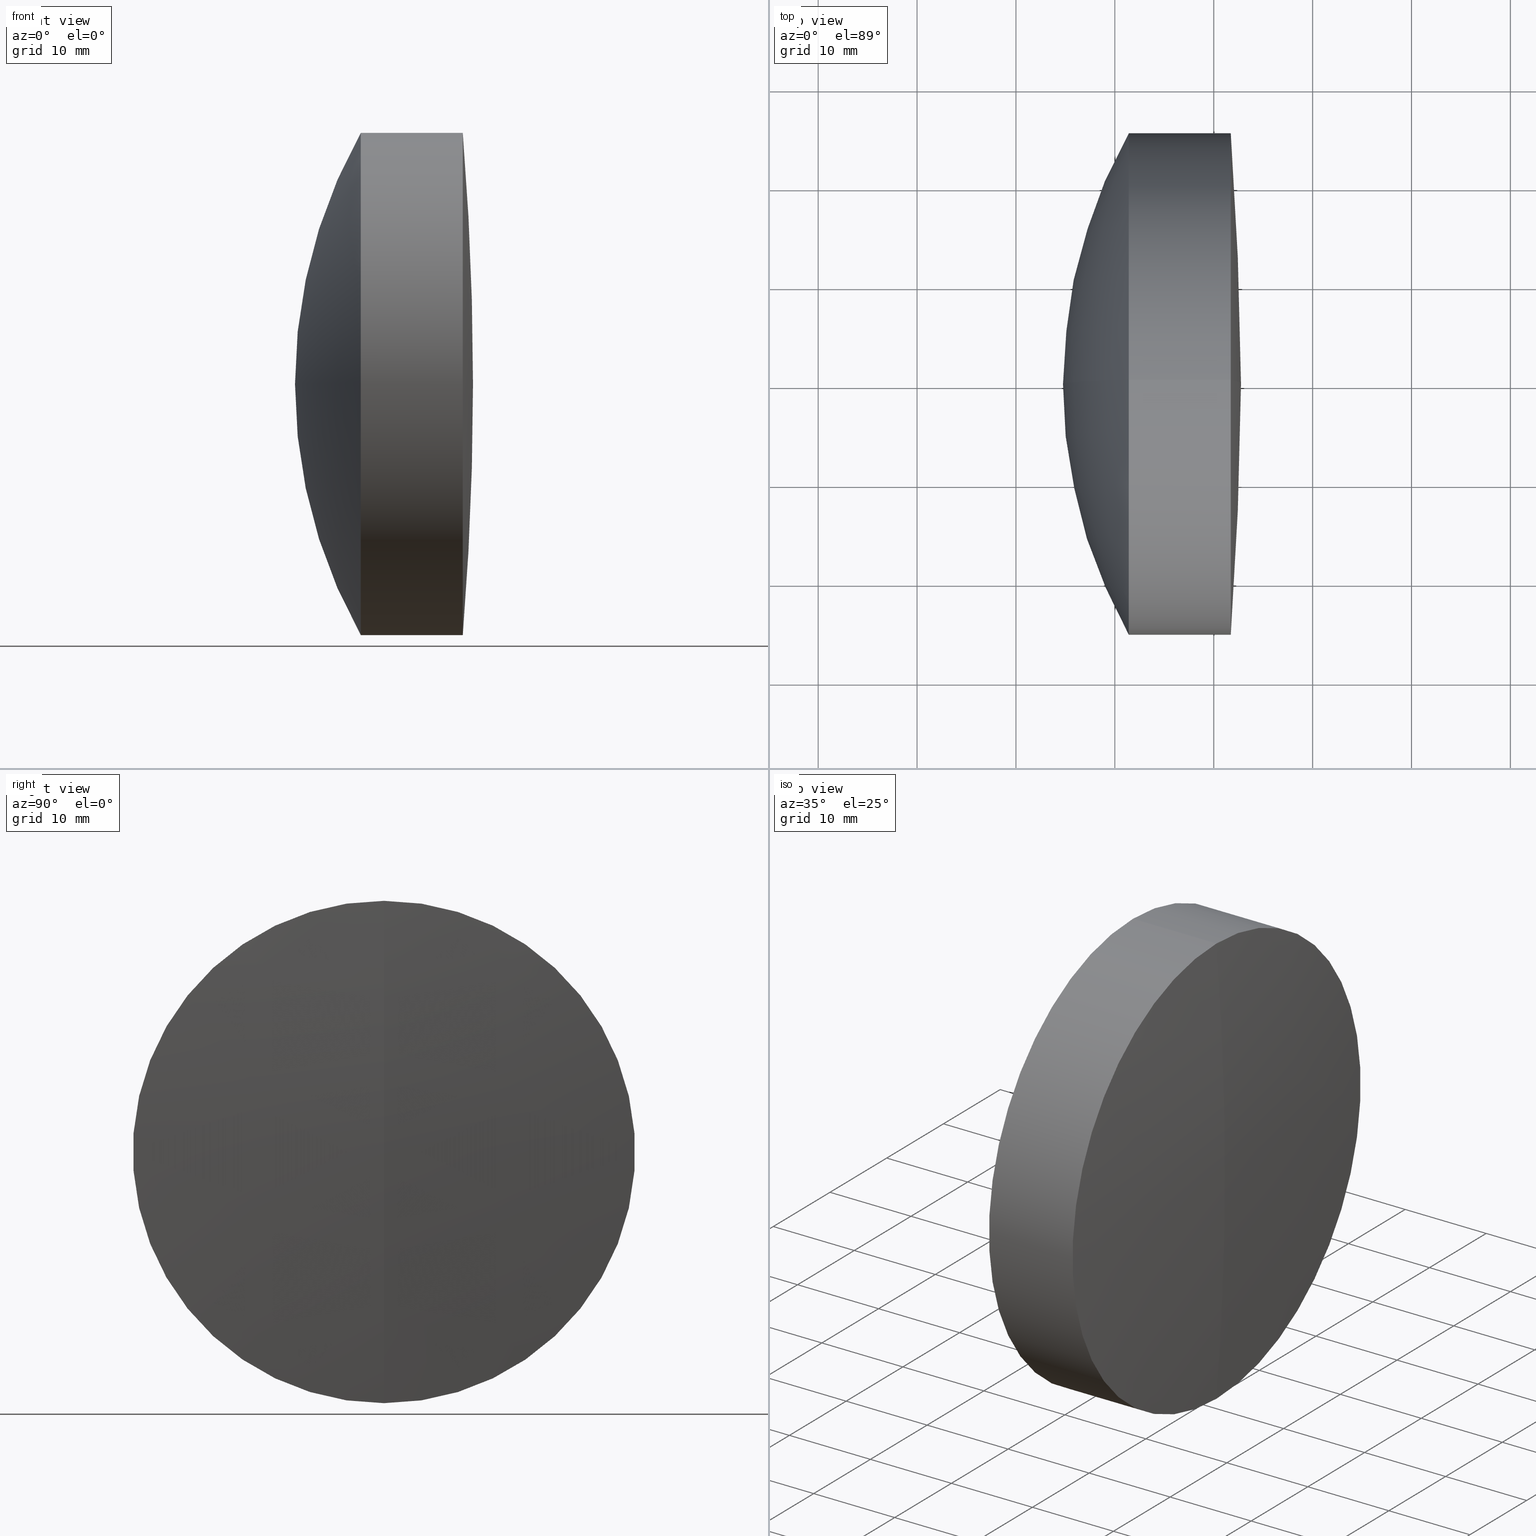
[diagram: canonical four-view strip — front | top / right | iso, engineering-drawing reading convention]
A machine part, canonical four-view strip (front | top / right | iso — engineering-drawing reading convention). The complete STEP part file that produces these views, byte-faithful:
ISO-10303-21;
HEADER;
FILE_DESCRIPTION (( 'STEP AP214' ),
    '1' );
FILE_NAME ('145134.STEP',
    '2019-06-04T07:13:42',
    ( 'user' ),
    ( '΢���й�' ),
    'SwSTEP 2.0',
    'SolidWorks 2016',
    '' );
FILE_SCHEMA (( 'AUTOMOTIVE_DESIGN' ));
ENDSEC;

DATA;
#1 = CARTESIAN_POINT ( 'NONE',  ( 531.7248018310176600, 0.0000000000000000000, 25.40000000000001300 ) ) ;
#2 = SURFACE_SIDE_STYLE ('',( #200 ) ) ;
#3 = AXIS2_PLACEMENT_3D ( 'NONE', #234, #39, #72 ) ;
#4 = AXIS2_PLACEMENT_3D ( 'NONE', #104, #268, #236 ) ;
#5 = CYLINDRICAL_SURFACE ( 'NONE', #62, 25.40000000000000200 ) ;
#6 = VERTEX_POINT ( 'NONE', #145 ) ;
#7 = SURFACE_SIDE_STYLE ('',( #241 ) ) ;
#8 = AXIS2_PLACEMENT_3D ( 'NONE', #223, #71, #172 ) ;
#9 = DIRECTION ( 'NONE',  ( 0.0000000000000000000, 1.000000000000000000, 0.0000000000000000000 ) ) ;
#10 = CIRCLE ( 'NONE', #3, 44.60000000000005800 ) ;
#11 = ORIENTED_EDGE ( 'NONE', *, *, #191, .T. ) ;
#12 = ORIENTED_EDGE ( 'NONE', *, *, #151, .F. ) ;
#13 = CIRCLE ( 'NONE', #317, 25.39999999999999100 ) ;
#14 = ORIENTED_EDGE ( 'NONE', *, *, #56, .T. ) ;
#15 = CARTESIAN_POINT ( 'NONE',  ( -0.5519199926577972300, 0.0000000000000000000, 25.40000000000000200 ) ) ;
#16 = CARTESIAN_POINT ( 'NONE',  ( 486.1584365089566400, 0.0000000000000000000, -9.937829943441984000E-015 ) ) ;
#17 = DIRECTION ( 'NONE',  ( 0.0000000000000000000, 0.0000000000000000000, 1.000000000000000000 ) ) ;
#18 = EDGE_LOOP ( 'NONE', ( #131, #14, #333 ) ) ;
#19 = CARTESIAN_POINT ( 'NONE',  ( 522.8190420686033800, 0.0000000000000000000, 25.39999999999999100 ) ) ;
#20 = AXIS2_PLACEMENT_3D ( 'NONE', #163, #41, #17 ) ;
#21 = VERTEX_POINT ( 'NONE', #113 ) ;
#22 = AXIS2_PLACEMENT_3D ( 'NONE', #216, #127, #272 ) ;
#23 = DIRECTION ( 'NONE',  ( 0.0000000000000000000, 0.0000000000000000000, 1.000000000000000000 ) ) ;
#24 = SPHERICAL_SURFACE ( 'NONE', #251, 44.60000000000005800 ) ;
#25 = CIRCLE ( 'NONE', #28, 25.39999999999999100 ) ;
#26 = ORIENTED_EDGE ( 'NONE', *, *, #108, .F. ) ;
#27 = CIRCLE ( 'NONE', #135, 44.60000000000005800 ) ;
#28 = AXIS2_PLACEMENT_3D ( 'NONE', #95, #233, #23 ) ;
#29 = ADVANCED_FACE ( 'NONE', ( #65 ), #196, .T. ) ;
#30 = DIRECTION ( 'NONE',  ( 0.0000000000000000000, 0.0000000000000000000, 1.000000000000000000 ) ) ;
#31 = VERTEX_POINT ( 'NONE', #19 ) ;
#32 = DIRECTION ( 'NONE',  ( -1.000000000000000000, -0.0000000000000000000, -0.0000000000000000000 ) ) ;
#33 = ORIENTED_EDGE ( 'NONE', *, *, #151, .T. ) ;
#34 =( NAMED_UNIT ( * ) SI_UNIT ( $, .STERADIAN. ) SOLID_ANGLE_UNIT ( ) );
#35 = UNCERTAINTY_MEASURE_WITH_UNIT (LENGTH_MEASURE( 1.000000000000000100E-005 ), #137, 'distance_accuracy_value', 'NONE');
#36 = LINE ( 'NONE', #15, #114 ) ;
#37 =( GEOMETRIC_REPRESENTATION_CONTEXT ( 3 ) GLOBAL_UNCERTAINTY_ASSIGNED_CONTEXT ( ( #291 ) ) GLOBAL_UNIT_ASSIGNED_CONTEXT ( ( #90, #178, #159 ) ) REPRESENTATION_CONTEXT ( 'NONE', 'WORKASPACE' ) );
#38 = CARTESIAN_POINT ( 'NONE',  ( 530.7584365089567200, 0.0000000000000000000, -7.206867581343383500E-015 ) ) ;
#39 = DIRECTION ( 'NONE',  ( 0.0000000000000000000, -1.000000000000000000, 0.0000000000000000000 ) ) ;
#40 = CIRCLE ( 'NONE', #116, 25.40000000000001300 ) ;
#41 = DIRECTION ( 'NONE',  ( -1.000000000000000000, -0.0000000000000000000, -0.0000000000000000000 ) ) ;
#42 = MECHANICAL_DESIGN_GEOMETRIC_PRESENTATION_REPRESENTATION (  '', ( #136 ), #175 ) ;
#43 = EDGE_LOOP ( 'NONE', ( #245, #237, #187 ) ) ;
#44 = CARTESIAN_POINT ( 'NONE',  ( 522.8190420686033800, 0.0000000000000000000, 25.39999999999999100 ) ) ;
#45 = DIRECTION ( 'NONE',  ( -1.000000000000000000, -0.0000000000000000000, -0.0000000000000000000 ) ) ;
#46 = FACE_OUTER_BOUND ( 'NONE', #215, .T. ) ;
#47 = COLOUR_RGB ( '',1.000000000000000000, 1.000000000000000000, 1.000000000000000000 ) ;
#48 = FILL_AREA_STYLE_COLOUR ( '', #47 ) ;
#49 = CARTESIAN_POINT ( 'NONE',  ( 124.5233095260452400, 0.0000000000000000000, 0.0000000000000000000 ) ) ;
#50 = EDGE_LOOP ( 'NONE', ( #165, #336, #231 ) ) ;
#51 = FILL_AREA_STYLE ('',( #59 ) ) ;
#52 = CIRCLE ( 'NONE', #327, 312.5999999999999700 ) ;
#53 = CARTESIAN_POINT ( 'NONE',  ( 220.1584365089566700, 0.0000000000000000000, 0.0000000000000000000 ) ) ;
#54 = ORIENTED_EDGE ( 'NONE', *, *, #125, .F. ) ;
#55 = DIRECTION ( 'NONE',  ( -1.000000000000000000, -0.0000000000000000000, -0.0000000000000000000 ) ) ;
#56 = EDGE_CURVE ( 'NONE', #115, #149, #198, .T. ) ;
#57 = ORIENTED_EDGE ( 'NONE', *, *, #302, .T. ) ;
#58 = SURFACE_STYLE_USAGE ( .BOTH. , #2 ) ;
#59 = FILL_AREA_STYLE_COLOUR ( '', #202 ) ;
#60 = FACE_OUTER_BOUND ( 'NONE', #192, .T. ) ;
#61 = CARTESIAN_POINT ( 'NONE',  ( 532.7584365089566100, 0.0000000000000000000, 1.914122947067313100E-014 ) ) ;
#62 = AXIS2_PLACEMENT_3D ( 'NONE', #153, #297, #186 ) ;
#63 = ADVANCED_FACE ( 'NONE', ( #335 ), #305, .T. ) ;
#64 = DIRECTION ( 'NONE',  ( 0.0000000000000000000, -1.000000000000000000, 0.0000000000000000000 ) ) ;
#65 = FACE_OUTER_BOUND ( 'NONE', #255, .T. ) ;
#66 = CLOSED_SHELL ( 'NONE', ( #229, #129, #63, #265, #285, #29 ) ) ;
#67 = PRESENTATION_LAYER_ASSIGNMENT (  '', '', ( #136 ) ) ;
#68 = DIRECTION ( 'NONE',  ( -1.000000000000000000, -0.0000000000000000000, -0.0000000000000000000 ) ) ;
#69 = MANIFOLD_SOLID_BREP ( '��ת3', #155 ) ;
#70 =( LENGTH_UNIT ( ) NAMED_UNIT ( * ) SI_UNIT ( .MILLI., .METRE. ) );
#71 = DIRECTION ( 'NONE',  ( -1.000000000000000000, -0.0000000000000000000, -0.0000000000000000000 ) ) ;
#72 = DIRECTION ( 'NONE',  ( 0.0000000000000000000, 0.0000000000000000000, -1.000000000000000000 ) ) ;
#73 = DIRECTION ( 'NONE',  ( -1.000000000000000000, -0.0000000000000000000, -0.0000000000000000000 ) ) ;
#74 = PRODUCT_DEFINITION_SHAPE ( 'NONE', 'NONE',  #224 ) ;
#75 = CARTESIAN_POINT ( 'NONE',  ( 566.5584365089565600, 0.0000000000000000000, -7.345239820020665200E-015 ) ) ;
#76 = ORIENTED_EDGE ( 'NONE', *, *, #166, .F. ) ;
#77 = AXIS2_PLACEMENT_3D ( 'NONE', #312, #128, #281 ) ;
#78 = CARTESIAN_POINT ( 'NONE',  ( 522.8190420686033800, 0.0000000000000000000, 0.0000000000000000000 ) ) ;
#79 = LINE ( 'NONE', #88, #277 ) ;
#80 = ORIENTED_EDGE ( 'NONE', *, *, #169, .T. ) ;
#81 = DIRECTION ( 'NONE',  ( 0.0000000000000000000, 1.000000000000000000, 0.0000000000000000000 ) ) ;
#82 = DIRECTION ( 'NONE',  ( -1.000000000000000000, -0.0000000000000000000, -0.0000000000000000000 ) ) ;
#83 = DIRECTION ( 'NONE',  ( -1.000000000000000000, -0.0000000000000000000, -0.0000000000000000000 ) ) ;
#84 = ORIENTED_EDGE ( 'NONE', *, *, #254, .T. ) ;
#85 = FILL_AREA_STYLE_COLOUR ( '', #139 ) ;
#86 = EDGE_CURVE ( 'NONE', #252, #171, #40, .T. ) ;
#87 = FACE_OUTER_BOUND ( 'NONE', #176, .T. ) ;
#88 = CARTESIAN_POINT ( 'NONE',  ( -0.5519199926577972300, 3.110602869834277300E-015, -25.40000000000000200 ) ) ;
#89 = EDGE_CURVE ( 'NONE', #222, #31, #157, .T. ) ;
#90 =( LENGTH_UNIT ( ) NAMED_UNIT ( * ) SI_UNIT ( .MILLI., .METRE. ) );
#91 = DIRECTION ( 'NONE',  ( -0.0000000000000000000, 1.000000000000000000, 1.224646799147353200E-016 ) ) ;
#92 = FACE_OUTER_BOUND ( 'NONE', #138, .T. ) ;
#93 = ORIENTED_EDGE ( 'NONE', *, *, #205, .F. ) ;
#94 = PRODUCT ( '145134', '145134', '', ( #220 ) ) ;
#95 = CARTESIAN_POINT ( 'NONE',  ( 521.4133371071388900, 0.0000000000000000000, 0.0000000000000000000 ) ) ;
#96 = ORIENTED_EDGE ( 'NONE', *, *, #321, .T. ) ;
#97 = DIRECTION ( 'NONE',  ( 0.0000000000000000000, 1.000000000000000000, 0.0000000000000000000 ) ) ;
#98 = SURFACE_SIDE_STYLE ('',( #100 ) ) ;
#99 = STYLED_ITEM ( 'NONE', ( #311 ), #263 ) ;
#100 = SURFACE_STYLE_FILL_AREA ( #51 ) ;
#101 = CARTESIAN_POINT ( 'NONE',  ( 521.4133371071388900, 0.0000000000000000000, 0.0000000000000000000 ) ) ;
#102 = ADVANCED_FACE ( 'NONE', ( #174 ), #334, .T. ) ;
#103 = FACE_OUTER_BOUND ( 'NONE', #184, .T. ) ;
#104 = CARTESIAN_POINT ( 'NONE',  ( 486.1584365089566400, 0.0000000000000000000, -9.937829943441984000E-015 ) ) ;
#105 =( NAMED_UNIT ( * ) SI_UNIT ( $, .STERADIAN. ) SOLID_ANGLE_UNIT ( ) );
#106 = ORIENTED_EDGE ( 'NONE', *, *, #89, .T. ) ;
#107 = CARTESIAN_POINT ( 'NONE',  ( 531.7248018310176600, 0.0000000000000000000, 0.0000000000000000000 ) ) ;
#108 = EDGE_CURVE ( 'NONE', #214, #21, #195, .T. ) ;
#109 = CARTESIAN_POINT ( 'NONE',  ( 514.7584365089566100, 0.0000000000000000000, -4.173404610229022400E-015 ) ) ;
#110 = EDGE_CURVE ( 'NONE', #21, #214, #13, .T. ) ;
#111 = CIRCLE ( 'NONE', #20, 25.39999999999999100 ) ;
#112 = DIRECTION ( 'NONE',  ( 0.0000000000000000000, -1.000000000000000000, 0.0000000000000000000 ) ) ;
#113 = CARTESIAN_POINT ( 'NONE',  ( 522.8190420686033800, 3.110602869834276100E-015, -25.40000000000000200 ) ) ;
#114 = VECTOR ( 'NONE', #342, 1000.000000000000000 ) ;
#115 = VERTEX_POINT ( 'NONE', #347 ) ;
#116 = AXIS2_PLACEMENT_3D ( 'NONE', #107, #211, #316 ) ;
#117 = AXIS2_PLACEMENT_3D ( 'NONE', #210, #112, #307 ) ;
#118 = ORIENTED_EDGE ( 'NONE', *, *, #166, .T. ) ;
#119 = CIRCLE ( 'NONE', #77, 51.79999999999996900 ) ;
#120 = PRESENTATION_LAYER_ASSIGNMENT (  '', '', ( #99 ) ) ;
#121 = ORIENTED_EDGE ( 'NONE', *, *, #321, .F. ) ;
#122 = APPLICATION_PROTOCOL_DEFINITION ( 'draft international standard', 'automotive_design', 1998, #310 ) ;
#123 = ORIENTED_EDGE ( 'NONE', *, *, #274, .F. ) ;
#124 = ORIENTED_EDGE ( 'NONE', *, *, #243, .T. ) ;
#125 = EDGE_CURVE ( 'NONE', #204, #31, #27, .T. ) ;
#126 = SPHERICAL_SURFACE ( 'NONE', #4, 44.60000000000005800 ) ;
#127 = DIRECTION ( 'NONE',  ( 0.0000000000000000000, 1.000000000000000000, 0.0000000000000000000 ) ) ;
#128 = DIRECTION ( 'NONE',  ( 0.0000000000000000000, -1.000000000000000000, 0.0000000000000000000 ) ) ;
#129 = ADVANCED_FACE ( 'NONE', ( #92 ), #162, .T. ) ;
#130 = DIRECTION ( 'NONE',  ( 0.0000000000000000000, -1.224646799147353000E-016, 1.000000000000000000 ) ) ;
#131 = ORIENTED_EDGE ( 'NONE', *, *, #238, .T. ) ;
#132 = DIRECTION ( 'NONE',  ( 0.0000000000000000000, -1.224646799147353500E-016, 1.000000000000000000 ) ) ;
#133 = CARTESIAN_POINT ( 'NONE',  ( 522.8190420686033800, 0.0000000000000000000, 0.0000000000000000000 ) ) ;
#134 = ORIENTED_EDGE ( 'NONE', *, *, #191, .F. ) ;
#135 = AXIS2_PLACEMENT_3D ( 'NONE', #181, #64, #150 ) ;
#136 = STYLED_ITEM ( 'NONE', ( #256 ), #318 ) ;
#137 =( LENGTH_UNIT ( ) NAMED_UNIT ( * ) SI_UNIT ( .MILLI., .METRE. ) );
#138 = EDGE_LOOP ( 'NONE', ( #11, #329, #279, #123 ) ) ;
#139 = COLOUR_RGB ( '',1.000000000000000000, 1.000000000000000000, 1.000000000000000000 ) ;
#140 = SPHERICAL_SURFACE ( 'NONE', #288, 312.5999999999999700 ) ;
#141 = PRESENTATION_LAYER_ASSIGNMENT (  '', '', ( #304 ) ) ;
#142 = CARTESIAN_POINT ( 'NONE',  ( 522.8190420686033800, 0.0000000000000000000, 0.0000000000000000000 ) ) ;
#143 = DIRECTION ( 'NONE',  ( -1.000000000000000000, -0.0000000000000000000, -0.0000000000000000000 ) ) ;
#144 = MECHANICAL_DESIGN_GEOMETRIC_PRESENTATION_REPRESENTATION (  '', ( #99 ), #160 ) ;
#145 = CARTESIAN_POINT ( 'NONE',  ( 530.7584365089567200, 0.0000000000000000000, -7.206867581343383500E-015 ) ) ;
#146 = APPLICATION_PROTOCOL_DEFINITION ( 'draft international standard', 'automotive_design', 1998, #206 ) ;
#147 = DIRECTION ( 'NONE',  ( 0.0000000000000000000, 0.0000000000000000000, 1.000000000000000000 ) ) ;
#148 = CARTESIAN_POINT ( 'NONE',  ( 0.0000000000000000000, 0.0000000000000000000, 0.0000000000000000000 ) ) ;
#149 = VERTEX_POINT ( 'NONE', #109 ) ;
#150 = DIRECTION ( 'NONE',  ( 0.0000000000000000000, 0.0000000000000000000, -1.000000000000000000 ) ) ;
#151 = EDGE_CURVE ( 'NONE', #171, #21, #79, .T. ) ;
#152 = ADVANCED_FACE ( 'NONE', ( #225 ), #140, .T. ) ;
#153 = CARTESIAN_POINT ( 'NONE',  ( -0.5519199926577972300, 0.0000000000000000000, 0.0000000000000000000 ) ) ;
#154 = AXIS2_PLACEMENT_3D ( 'NONE', #101, #55, #293 ) ;
#155 = CLOSED_SHELL ( 'NONE', ( #152, #332, #278, #240, #102, #340 ) ) ;
#156 =( NAMED_UNIT ( * ) SI_UNIT ( $, .STERADIAN. ) SOLID_ANGLE_UNIT ( ) );
#157 = CIRCLE ( 'NONE', #227, 25.39999999999999100 ) ;
#158 = ORIENTED_EDGE ( 'NONE', *, *, #86, .T. ) ;
#159 =( NAMED_UNIT ( * ) SI_UNIT ( $, .STERADIAN. ) SOLID_ANGLE_UNIT ( ) );
#160 =( GEOMETRIC_REPRESENTATION_CONTEXT ( 3 ) GLOBAL_UNCERTAINTY_ASSIGNED_CONTEXT ( ( #35 ) ) GLOBAL_UNIT_ASSIGNED_CONTEXT ( ( #137, #308, #156 ) ) REPRESENTATION_CONTEXT ( 'NONE', 'WORKASPACE' ) );
#161 = DIRECTION ( 'NONE',  ( 0.0000000000000000000, -1.224646799147353000E-016, 1.000000000000000000 ) ) ;
#162 = CYLINDRICAL_SURFACE ( 'NONE', #344, 25.39999999999999100 ) ;
#163 = CARTESIAN_POINT ( 'NONE',  ( 522.8190420686033800, 0.0000000000000000000, 0.0000000000000000000 ) ) ;
#164 =( LENGTH_UNIT ( ) NAMED_UNIT ( * ) SI_UNIT ( .MILLI., .METRE. ) );
#165 = ORIENTED_EDGE ( 'NONE', *, *, #169, .F. ) ;
#166 = EDGE_CURVE ( 'NONE', #204, #222, #339, .T. ) ;
#167 = CARTESIAN_POINT ( 'NONE',  ( 486.1584365089566400, 0.0000000000000000000, -9.937829943441984000E-015 ) ) ;
#168 = CYLINDRICAL_SURFACE ( 'NONE', #298, 25.39999999999999100 ) ;
#169 = EDGE_CURVE ( 'NONE', #295, #252, #341, .T. ) ;
#170 = CARTESIAN_POINT ( 'NONE',  ( 486.1584365089566400, 0.0000000000000000000, -9.937829943441984000E-015 ) ) ;
#171 = VERTEX_POINT ( 'NONE', #287 ) ;
#172 = DIRECTION ( 'NONE',  ( 0.0000000000000000000, 0.0000000000000000000, 1.000000000000000000 ) ) ;
#173 = PRODUCT_RELATED_PRODUCT_CATEGORY ( 'part', '', ( #94 ) ) ;
#174 = FACE_OUTER_BOUND ( 'NONE', #325, .T. ) ;
#175 =( GEOMETRIC_REPRESENTATION_CONTEXT ( 3 ) GLOBAL_UNCERTAINTY_ASSIGNED_CONTEXT ( ( #177 ) ) GLOBAL_UNIT_ASSIGNED_CONTEXT ( ( #70, #201, #34 ) ) REPRESENTATION_CONTEXT ( 'NONE', 'WORKASPACE' ) );
#176 = EDGE_LOOP ( 'NONE', ( #158, #33, #26, #309 ) ) ;
#177 = UNCERTAINTY_MEASURE_WITH_UNIT (LENGTH_MEASURE( 1.000000000000000100E-005 ), #70, 'distance_accuracy_value', 'NONE');
#178 =( NAMED_UNIT ( * ) PLANE_ANGLE_UNIT ( ) SI_UNIT ( $, .RADIAN. ) );
#179 = SPHERICAL_SURFACE ( 'NONE', #22, 312.5999999999999700 ) ;
#180 = CARTESIAN_POINT ( 'NONE',  ( 566.5584365089565600, 0.0000000000000000000, -7.345239820020665200E-015 ) ) ;
#181 = CARTESIAN_POINT ( 'NONE',  ( 486.1584365089566400, 0.0000000000000000000, -9.937829943441984000E-015 ) ) ;
#182 = ORIENTED_EDGE ( 'NONE', *, *, #274, .T. ) ;
#183 = AXIS2_PLACEMENT_3D ( 'NONE', #167, #345, #161 ) ;
#184 = EDGE_LOOP ( 'NONE', ( #54, #118, #134 ) ) ;
#185 = DIRECTION ( 'NONE',  ( 0.0000000000000000000, 0.0000000000000000000, 1.000000000000000000 ) ) ;
#186 = DIRECTION ( 'NONE',  ( 0.0000000000000000000, 0.0000000000000000000, 1.000000000000000000 ) ) ;
#187 = ORIENTED_EDGE ( 'NONE', *, *, #110, .T. ) ;
#188 = DIRECTION ( 'NONE',  ( 0.0000000000000000000, 1.000000000000000000, 0.0000000000000000000 ) ) ;
#189 = CARTESIAN_POINT ( 'NONE',  ( 124.5233095260452400, 3.110602869834276100E-015, -25.39999999999999100 ) ) ;
#190 = ORIENTED_EDGE ( 'NONE', *, *, #306, .T. ) ;
#191 = EDGE_CURVE ( 'NONE', #31, #222, #111, .T. ) ;
#192 = EDGE_LOOP ( 'NONE', ( #262, #84, #303 ) ) ;
#193 = AXIS2_PLACEMENT_3D ( 'NONE', #78, #82, #276 ) ;
#194 = DIRECTION ( 'NONE',  ( 0.0000000000000000000, 1.000000000000000000, 0.0000000000000000000 ) ) ;
#195 = CIRCLE ( 'NONE', #193, 25.39999999999999100 ) ;
#196 = SPHERICAL_SURFACE ( 'NONE', #324, 44.60000000000005800 ) ;
#197 = DIRECTION ( 'NONE',  ( 0.0000000000000000000, 0.0000000000000000000, 1.000000000000000000 ) ) ;
#198 = CIRCLE ( 'NONE', #271, 51.79999999999996900 ) ;
#199 = AXIS2_PLACEMENT_3D ( 'NONE', #323, #248, #208 ) ;
#200 = SURFACE_STYLE_FILL_AREA ( #326 ) ;
#201 =( NAMED_UNIT ( * ) PLANE_ANGLE_UNIT ( ) SI_UNIT ( $, .RADIAN. ) );
#202 = COLOUR_RGB ( '',1.000000000000000000, 1.000000000000000000, 1.000000000000000000 ) ;
#203 = DIRECTION ( 'NONE',  ( -1.000000000000000000, -0.0000000000000000000, -0.0000000000000000000 ) ) ;
#204 = VERTEX_POINT ( 'NONE', #38 ) ;
#205 = EDGE_CURVE ( 'NONE', #295, #171, #52, .T. ) ;
#206 = APPLICATION_CONTEXT ( 'automotive_design' ) ;
#207 = VECTOR ( 'NONE', #83, 1000.000000000000000 ) ;
#208 = DIRECTION ( 'NONE',  ( 0.0000000000000000000, 0.0000000000000000000, 1.000000000000000000 ) ) ;
#209 = AXIS2_PLACEMENT_3D ( 'NONE', #148, #185, #264 ) ;
#210 = CARTESIAN_POINT ( 'NONE',  ( 220.1584365089566700, 0.0000000000000000000, 0.0000000000000000000 ) ) ;
#211 = DIRECTION ( 'NONE',  ( -1.000000000000000000, -0.0000000000000000000, -0.0000000000000000000 ) ) ;
#212 = PRODUCT_DEFINITION_CONTEXT ( 'detailed design', #206, 'design' ) ;
#213 = EDGE_CURVE ( 'NONE', #222, #115, #275, .T. ) ;
#214 = VERTEX_POINT ( 'NONE', #44 ) ;
#215 = EDGE_LOOP ( 'NONE', ( #93, #80, #121 ) ) ;
#216 = CARTESIAN_POINT ( 'NONE',  ( 220.1584365089566700, 0.0000000000000000000, 0.0000000000000000000 ) ) ;
#217 = DIRECTION ( 'NONE',  ( -1.000000000000000000, -0.0000000000000000000, -0.0000000000000000000 ) ) ;
#218 = DIRECTION ( 'NONE',  ( 0.0000000000000000000, 0.0000000000000000000, 1.000000000000000000 ) ) ;
#219 = CARTESIAN_POINT ( 'NONE',  ( 521.4133371071388900, 0.0000000000000000000, 25.39999999999999100 ) ) ;
#220 = PRODUCT_CONTEXT ( 'NONE', #310, 'mechanical' ) ;
#221 = PRESENTATION_STYLE_ASSIGNMENT (( #284 ) ) ;
#222 = VERTEX_POINT ( 'NONE', #244 ) ;
#223 = CARTESIAN_POINT ( 'NONE',  ( 531.7248018310176600, 0.0000000000000000000, 0.0000000000000000000 ) ) ;
#224 = PRODUCT_DEFINITION ( 'δ֪', '', #249, #212 ) ;
#225 = FACE_OUTER_BOUND ( 'NONE', #50, .T. ) ;
#226 = AXIS2_PLACEMENT_3D ( 'NONE', #286, #217, #30 ) ;
#227 = AXIS2_PLACEMENT_3D ( 'NONE', #142, #45, #250 ) ;
#228 = VECTOR ( 'NONE', #143, 1000.000000000000000 ) ;
#229 = ADVANCED_FACE ( 'NONE', ( #103 ), #126, .T. ) ;
#230 = UNCERTAINTY_MEASURE_WITH_UNIT (LENGTH_MEASURE( 1.000000000000000100E-005 ), #164, 'distance_accuracy_value', 'NONE');
#231 = ORIENTED_EDGE ( 'NONE', *, *, #86, .F. ) ;
#232 = EDGE_CURVE ( 'NONE', #6, #21, #330, .T. ) ;
#233 = DIRECTION ( 'NONE',  ( -1.000000000000000000, -0.0000000000000000000, -0.0000000000000000000 ) ) ;
#234 = CARTESIAN_POINT ( 'NONE',  ( 486.1584365089566400, 0.0000000000000000000, -9.937829943441984000E-015 ) ) ;
#235 = FACE_OUTER_BOUND ( 'NONE', #296, .T. ) ;
#236 = DIRECTION ( 'NONE',  ( 0.0000000000000000000, 0.0000000000000000000, 1.000000000000000000 ) ) ;
#237 = ORIENTED_EDGE ( 'NONE', *, *, #232, .T. ) ;
#238 = EDGE_CURVE ( 'NONE', #282, #115, #25, .T. ) ;
#239 = DIRECTION ( 'NONE',  ( 0.0000000000000000000, -1.224646799147353200E-016, 1.000000000000000000 ) ) ;
#240 = ADVANCED_FACE ( 'NONE', ( #60 ), #260, .F. ) ;
#241 = SURFACE_STYLE_FILL_AREA ( #315 ) ;
#242 = DIRECTION ( 'NONE',  ( 0.0000000000000000000, 0.0000000000000000000, 1.000000000000000000 ) ) ;
#243 = EDGE_CURVE ( 'NONE', #115, #282, #313, .T. ) ;
#244 = CARTESIAN_POINT ( 'NONE',  ( 522.8190420686033800, 3.110602869834276100E-015, -25.39999999999999100 ) ) ;
#245 = ORIENTED_EDGE ( 'NONE', *, *, #254, .F. ) ;
#246 = AXIS2_PLACEMENT_3D ( 'NONE', #16, #81, #218 ) ;
#247 = LINE ( 'NONE', #253, #228 ) ;
#248 = DIRECTION ( 'NONE',  ( 0.0000000000000000000, 1.000000000000000000, 0.0000000000000000000 ) ) ;
#249 = PRODUCT_DEFINITION_FORMATION_WITH_SPECIFIED_SOURCE ( '�κ�', '', #94, .NOT_KNOWN. ) ;
#250 = DIRECTION ( 'NONE',  ( 0.0000000000000000000, 0.0000000000000000000, 1.000000000000000000 ) ) ;
#251 = AXIS2_PLACEMENT_3D ( 'NONE', #331, #188, #320 ) ;
#252 = VERTEX_POINT ( 'NONE', #1 ) ;
#253 = CARTESIAN_POINT ( 'NONE',  ( 124.5233095260452400, 0.0000000000000000000, 25.39999999999999100 ) ) ;
#254 = EDGE_CURVE ( 'NONE', #6, #214, #10, .T. ) ;
#255 = EDGE_LOOP ( 'NONE', ( #76, #301, #273 ) ) ;
#256 = PRESENTATION_STYLE_ASSIGNMENT (( #267 ) ) ;
#257 = SHAPE_DEFINITION_REPRESENTATION ( #74, #263 ) ;
#258 = ORIENTED_EDGE ( 'NONE', *, *, #110, .F. ) ;
#259 = AXIS2_PLACEMENT_3D ( 'NONE', #337, #91, #130 ) ;
#260 = SPHERICAL_SURFACE ( 'NONE', #246, 44.60000000000005800 ) ;
#261 = EDGE_LOOP ( 'NONE', ( #270, #124, #190 ) ) ;
#262 = ORIENTED_EDGE ( 'NONE', *, *, #232, .F. ) ;
#263 = ADVANCED_BREP_SHAPE_REPRESENTATION ( '145134', ( #318, #69, #209 ), #37 ) ;
#264 = DIRECTION ( 'NONE',  ( 1.000000000000000000, 0.0000000000000000000, 0.0000000000000000000 ) ) ;
#265 = ADVANCED_FACE ( 'NONE', ( #300 ), #266, .T. ) ;
#266 = SPHERICAL_SURFACE ( 'NONE', #199, 51.79999999999996900 ) ;
#267 = SURFACE_STYLE_USAGE ( .BOTH. , #98 ) ;
#268 = DIRECTION ( 'NONE',  ( 0.0000000000000000000, 1.000000000000000000, 0.0000000000000000000 ) ) ;
#269 =( NAMED_UNIT ( * ) PLANE_ANGLE_UNIT ( ) SI_UNIT ( $, .RADIAN. ) );
#270 = ORIENTED_EDGE ( 'NONE', *, *, #56, .F. ) ;
#271 = AXIS2_PLACEMENT_3D ( 'NONE', #75, #289, #239 ) ;
#272 = DIRECTION ( 'NONE',  ( 0.0000000000000000000, 0.0000000000000000000, 1.000000000000000000 ) ) ;
#273 = ORIENTED_EDGE ( 'NONE', *, *, #89, .F. ) ;
#274 = EDGE_CURVE ( 'NONE', #31, #282, #247, .T. ) ;
#275 = LINE ( 'NONE', #189, #207 ) ;
#276 = DIRECTION ( 'NONE',  ( 0.0000000000000000000, 0.0000000000000000000, 1.000000000000000000 ) ) ;
#277 = VECTOR ( 'NONE', #32, 1000.000000000000000 ) ;
#278 = ADVANCED_FACE ( 'NONE', ( #299 ), #24, .F. ) ;
#279 = ORIENTED_EDGE ( 'NONE', *, *, #238, .F. ) ;
#280 = MECHANICAL_DESIGN_GEOMETRIC_PRESENTATION_REPRESENTATION (  '', ( #304 ), #294 ) ;
#281 = DIRECTION ( 'NONE',  ( 0.0000000000000000000, 0.0000000000000000000, -1.000000000000000000 ) ) ;
#282 = VERTEX_POINT ( 'NONE', #219 ) ;
#283 = DIRECTION ( 'NONE',  ( 0.0000000000000000000, 0.0000000000000000000, 1.000000000000000000 ) ) ;
#284 = SURFACE_STYLE_USAGE ( .BOTH. , #7 ) ;
#285 = ADVANCED_FACE ( 'NONE', ( #235 ), #168, .T. ) ;
#286 = CARTESIAN_POINT ( 'NONE',  ( -0.5519199926577972300, 0.0000000000000000000, 0.0000000000000000000 ) ) ;
#287 = CARTESIAN_POINT ( 'NONE',  ( 531.7248018310176600, 3.110602869834278800E-015, -25.40000000000001300 ) ) ;
#288 = AXIS2_PLACEMENT_3D ( 'NONE', #53, #9, #343 ) ;
#289 = DIRECTION ( 'NONE',  ( -0.0000000000000000000, 1.000000000000000000, 1.224646799147353200E-016 ) ) ;
#290 = ORIENTED_EDGE ( 'NONE', *, *, #243, .F. ) ;
#291 = UNCERTAINTY_MEASURE_WITH_UNIT (LENGTH_MEASURE( 1.000000000000000100E-005 ), #90, 'distance_accuracy_value', 'NONE');
#292 = DIRECTION ( 'NONE',  ( 0.0000000000000000000, 0.0000000000000000000, 1.000000000000000000 ) ) ;
#293 = DIRECTION ( 'NONE',  ( 0.0000000000000000000, 0.0000000000000000000, 1.000000000000000000 ) ) ;
#294 =( GEOMETRIC_REPRESENTATION_CONTEXT ( 3 ) GLOBAL_UNCERTAINTY_ASSIGNED_CONTEXT ( ( #230 ) ) GLOBAL_UNIT_ASSIGNED_CONTEXT ( ( #164, #269, #105 ) ) REPRESENTATION_CONTEXT ( 'NONE', 'WORKASPACE' ) );
#295 = VERTEX_POINT ( 'NONE', #61 ) ;
#296 = EDGE_LOOP ( 'NONE', ( #319, #106, #182, #290 ) ) ;
#297 = DIRECTION ( 'NONE',  ( -1.000000000000000000, -0.0000000000000000000, -0.0000000000000000000 ) ) ;
#298 = AXIS2_PLACEMENT_3D ( 'NONE', #338, #203, #197 ) ;
#299 = FACE_OUTER_BOUND ( 'NONE', #43, .T. ) ;
#300 = FACE_OUTER_BOUND ( 'NONE', #261, .T. ) ;
#301 = ORIENTED_EDGE ( 'NONE', *, *, #125, .T. ) ;
#302 = EDGE_CURVE ( 'NONE', #252, #214, #36, .T. ) ;
#303 = ORIENTED_EDGE ( 'NONE', *, *, #108, .T. ) ;
#304 = STYLED_ITEM ( 'NONE', ( #221 ), #69 ) ;
#305 = SPHERICAL_SURFACE ( 'NONE', #328, 51.79999999999996900 ) ;
#306 = EDGE_CURVE ( 'NONE', #282, #149, #119, .T. ) ;
#307 = DIRECTION ( 'NONE',  ( 0.0000000000000000000, 0.0000000000000000000, -1.000000000000000000 ) ) ;
#308 =( NAMED_UNIT ( * ) PLANE_ANGLE_UNIT ( ) SI_UNIT ( $, .RADIAN. ) );
#309 = ORIENTED_EDGE ( 'NONE', *, *, #302, .F. ) ;
#310 = APPLICATION_CONTEXT ( 'automotive_design' ) ;
#311 = PRESENTATION_STYLE_ASSIGNMENT (( #58 ) ) ;
#312 = CARTESIAN_POINT ( 'NONE',  ( 566.5584365089565600, 0.0000000000000000000, -7.345239820020665200E-015 ) ) ;
#313 = CIRCLE ( 'NONE', #154, 25.39999999999999100 ) ;
#314 = DIRECTION ( 'NONE',  ( -0.0000000000000000000, 1.000000000000000000, 1.224646799147353200E-016 ) ) ;
#315 = FILL_AREA_STYLE ('',( #48 ) ) ;
#316 = DIRECTION ( 'NONE',  ( 0.0000000000000000000, 0.0000000000000000000, 1.000000000000000000 ) ) ;
#317 = AXIS2_PLACEMENT_3D ( 'NONE', #133, #68, #283 ) ;
#318 = MANIFOLD_SOLID_BREP ( '��ת1', #66 ) ;
#319 = ORIENTED_EDGE ( 'NONE', *, *, #213, .F. ) ;
#320 = DIRECTION ( 'NONE',  ( 0.0000000000000000000, 0.0000000000000000000, 1.000000000000000000 ) ) ;
#321 = EDGE_CURVE ( 'NONE', #171, #252, #322, .T. ) ;
#322 = CIRCLE ( 'NONE', #8, 25.40000000000001300 ) ;
#323 = CARTESIAN_POINT ( 'NONE',  ( 566.5584365089565600, 0.0000000000000000000, -7.345239820020665200E-015 ) ) ;
#324 = AXIS2_PLACEMENT_3D ( 'NONE', #170, #194, #292 ) ;
#325 = EDGE_LOOP ( 'NONE', ( #12, #96, #57, #258 ) ) ;
#326 = FILL_AREA_STYLE ('',( #85 ) ) ;
#327 = AXIS2_PLACEMENT_3D ( 'NONE', #346, #314, #132 ) ;
#328 = AXIS2_PLACEMENT_3D ( 'NONE', #180, #97, #147 ) ;
#329 = ORIENTED_EDGE ( 'NONE', *, *, #213, .T. ) ;
#330 = CIRCLE ( 'NONE', #183, 44.60000000000005800 ) ;
#331 = CARTESIAN_POINT ( 'NONE',  ( 486.1584365089566400, 0.0000000000000000000, -9.937829943441984000E-015 ) ) ;
#332 = ADVANCED_FACE ( 'NONE', ( #87 ), #5, .T. ) ;
#333 = ORIENTED_EDGE ( 'NONE', *, *, #306, .F. ) ;
#334 = CYLINDRICAL_SURFACE ( 'NONE', #226, 25.40000000000000200 ) ;
#335 = FACE_OUTER_BOUND ( 'NONE', #18, .T. ) ;
#336 = ORIENTED_EDGE ( 'NONE', *, *, #205, .T. ) ;
#337 = CARTESIAN_POINT ( 'NONE',  ( 486.1584365089566400, 0.0000000000000000000, -9.937829943441984000E-015 ) ) ;
#338 = CARTESIAN_POINT ( 'NONE',  ( 124.5233095260452400, 0.0000000000000000000, 0.0000000000000000000 ) ) ;
#339 = CIRCLE ( 'NONE', #259, 44.60000000000005800 ) ;
#340 = ADVANCED_FACE ( 'NONE', ( #46 ), #179, .T. ) ;
#341 = CIRCLE ( 'NONE', #117, 312.5999999999999700 ) ;
#342 = DIRECTION ( 'NONE',  ( -1.000000000000000000, -0.0000000000000000000, -0.0000000000000000000 ) ) ;
#343 = DIRECTION ( 'NONE',  ( 0.0000000000000000000, 0.0000000000000000000, 1.000000000000000000 ) ) ;
#344 = AXIS2_PLACEMENT_3D ( 'NONE', #49, #73, #242 ) ;
#345 = DIRECTION ( 'NONE',  ( -0.0000000000000000000, 1.000000000000000000, 1.224646799147353200E-016 ) ) ;
#346 = CARTESIAN_POINT ( 'NONE',  ( 220.1584365089566700, 0.0000000000000000000, 0.0000000000000000000 ) ) ;
#347 = CARTESIAN_POINT ( 'NONE',  ( 521.4133371071388900, 3.110602869834276500E-015, -25.39999999999999900 ) ) ;
ENDSEC;
END-ISO-10303-21;
